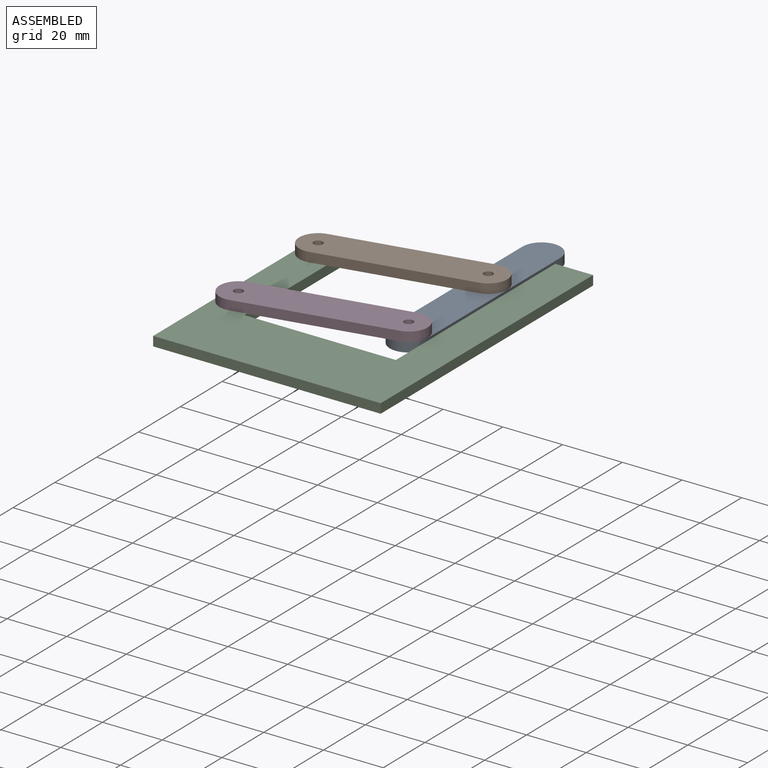
[diagram: assembled view]
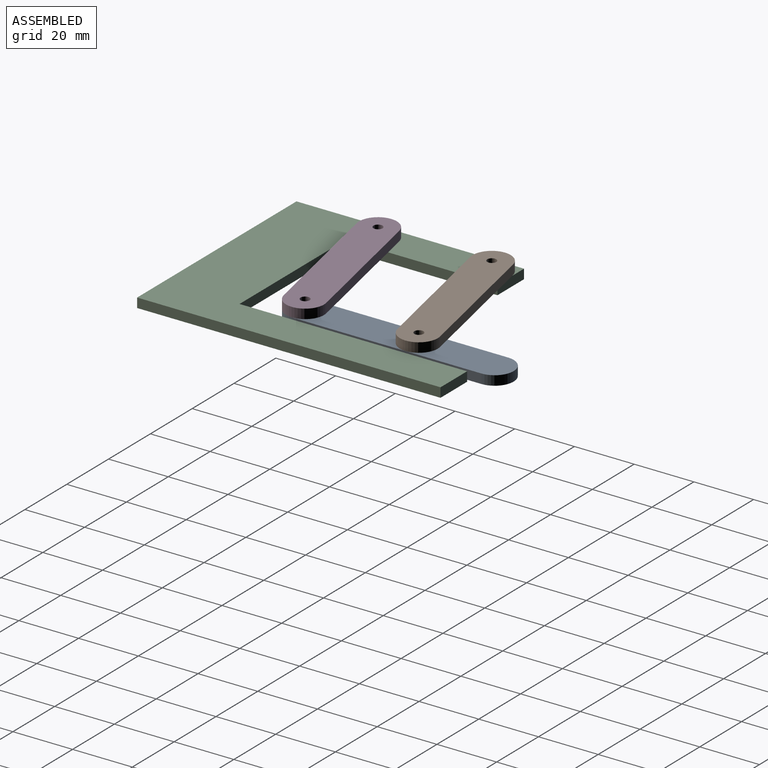
[diagram: assembled view, second angle]
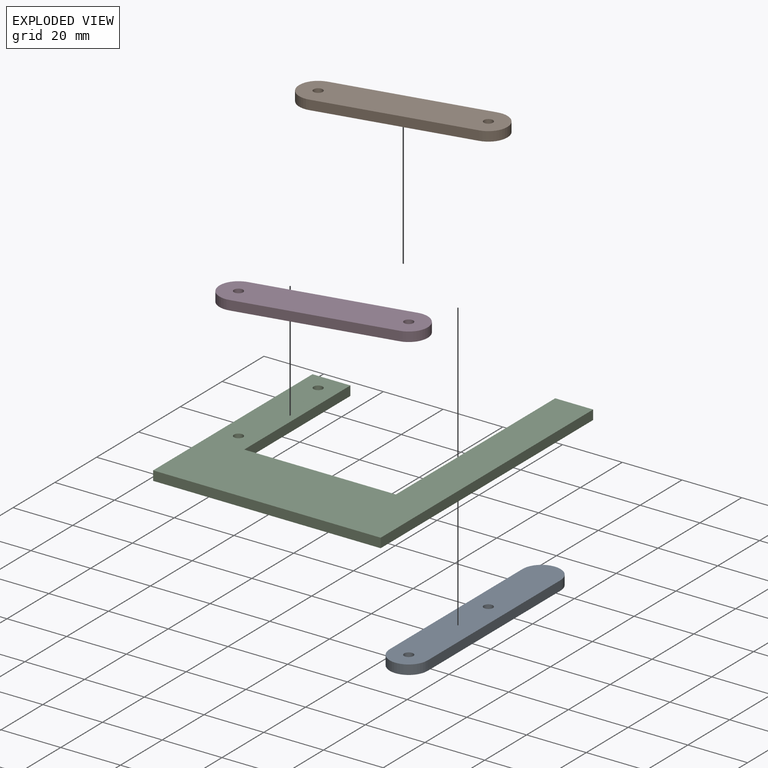
[diagram: exploded view]
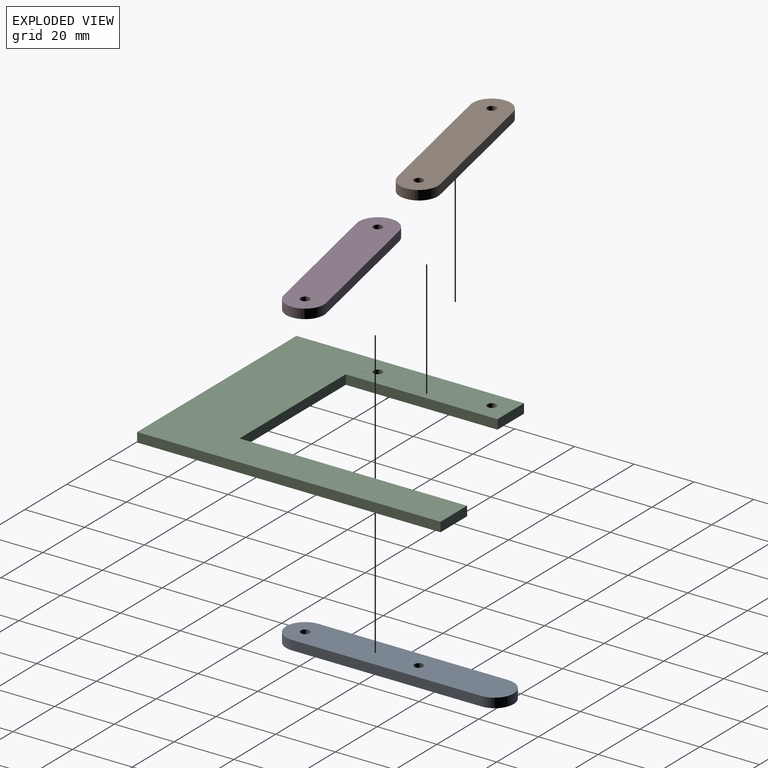
[diagram: exploded view, second angle]
ASSEMBLY  parts=4 mates=4
PART A: 8 faces, bbox 12.7x76.2x3.2 mm
  f0: plane 63.5x3.18mm, normal (-1,0,0), area 201.6mm2, adj f1,f4,f6,f7
  f1: cylinder r=6.35mm len=12.7mm, axis (0,0,-1), area 63.3mm2, adj f0,f2,f6,f7
  f2: plane 63.5x3.18mm, normal (1,0,0), area 201.6mm2, adj f1,f4,f6,f7
  f3: cylinder r=1.52mm len=3.18mm, axis (0,0,-1), area 30.4mm2, adj f6,f7
  f4: cylinder r=6.35mm len=12.7mm, axis (0,0,-1), area 63.3mm2, adj f0,f2,f6,f7
  f5: cylinder r=1.52mm len=3.18mm, axis (0,0,-1), area 30.4mm2, adj f6,f7
  f6: plane 76.2x12.7mm, normal (0,0,1), area 918.5mm2, adj f0,f1,f2,f3,f4,f5
  f7: plane 76.2x12.7mm, normal (0,0,-1), area 918.5mm2, adj f0,f1,f2,f3,f4,f5
PART B: 8 faces, bbox 12.7x63.5x3.2 mm
  f0: plane 50.8x3.18mm, normal (-1,0,0), area 161.3mm2, adj f1,f4,f6,f7
  f1: cylinder r=6.35mm len=12.7mm, axis (0,0,-1), area 63.3mm2, adj f0,f2,f6,f7
  f2: plane 50.8x3.18mm, normal (1,0,0), area 161.3mm2, adj f1,f4,f6,f7
  f3: cylinder r=1.52mm len=3.18mm, axis (0,0,-1), area 30.4mm2, adj f6,f7
  f4: cylinder r=6.35mm len=12.7mm, axis (0,0,-1), area 63.3mm2, adj f0,f2,f6,f7
  f5: cylinder r=1.52mm len=3.18mm, axis (0,0,-1), area 30.4mm2, adj f6,f7
  f6: plane 63.5x12.7mm, normal (0,0,1), area 757.2mm2, adj f0,f1,f2,f3,f4,f5
  f7: plane 63.5x12.7mm, normal (0,0,-1), area 757.2mm2, adj f0,f1,f2,f3,f4,f5
PART C: 12 faces, bbox 76.2x101.6x3.2 mm
  f0: plane 76.2x3.18mm, normal (0,-1,0), area 241.9mm2, adj f1,f8,f10,f11
  f1: plane 101.6x3.18mm, normal (1,0,0), area 322.6mm2, adj f0,f2,f10,f11
  f2: plane 12.7x3.18mm, normal (0,1,0), area 40.3mm2, adj f1,f3,f10,f11
  f3: plane 76.2x3.18mm, normal (-1,0,0), area 241.9mm2, adj f2,f4,f10,f11
  f4: plane 50.8x3.18mm, normal (0,1,0), area 161.3mm2, adj f3,f5,f10,f11
  f5: plane 50.8x3.18mm, normal (1,0,0), area 161.3mm2, adj f4,f6,f10,f11
  f6: plane 12.7x3.18mm, normal (0,1,0), area 40.3mm2, adj f5,f8,f10,f11
  f7: cylinder r=1.52mm len=3.18mm, axis (0,0,-1), area 30.4mm2, adj f10,f11
  f8: plane 76.2x3.18mm, normal (-1,0,0), area 241.9mm2, adj f0,f6,f10,f11
  f9: cylinder r=1.52mm len=3.18mm, axis (0,0,-1), area 30.4mm2, adj f10,f11
  f10: plane 101.6x76.2mm, normal (0,0,1), area 3533.8mm2, adj f0,f1,f2,f3,f4,f5,f6,f7
  f11: plane 101.6x76.2mm, normal (0,0,-1), area 3533.8mm2, adj f0,f1,f2,f3,f4,f5,f6,f7
PART D: same geometry as B
PLACE A rot(axis=(0.08,0.98,-0.19),0deg) t=(30.09,-26.03,-1.02)mm
PLACE B rot(axis=(0,0,-1),78.2deg) t=(5.23,-12.18,2.16)mm
PLACE C rot(axis=(0.08,0.98,-0.19),0deg) t=(12.12,-74.53,-1.02)mm fixed
PLACE D rot(axis=(0,0,1),101.8deg) t=(5.23,-50.28,2.16)mm
MATE revolute A.f5 <-> B.f5  axis (0,0,1) through (30.09,-6.98,2.16)mm
MATE revolute B.f3 <-> C.f7  axis (0,0,-1) through (-19.63,-17.38,2.16)mm
MATE revolute C.f9 <-> D.f5  axis (0,0,1) through (-19.63,-55.48,2.16)mm
MATE revolute D.f3 <-> A.f3  axis (0,0,-1) through (30.09,-45.08,2.16)mm
